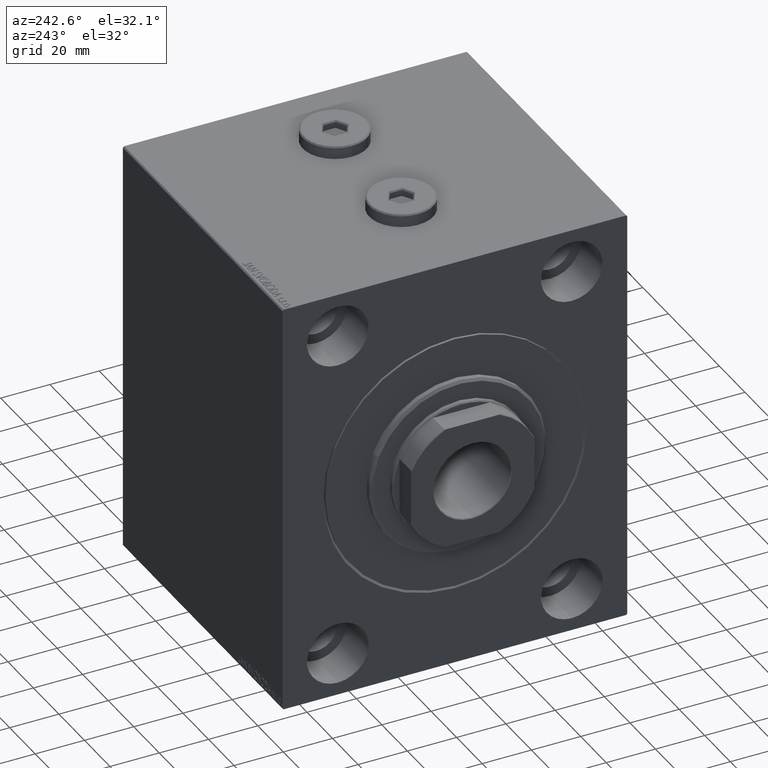
[diagram: clean part render]
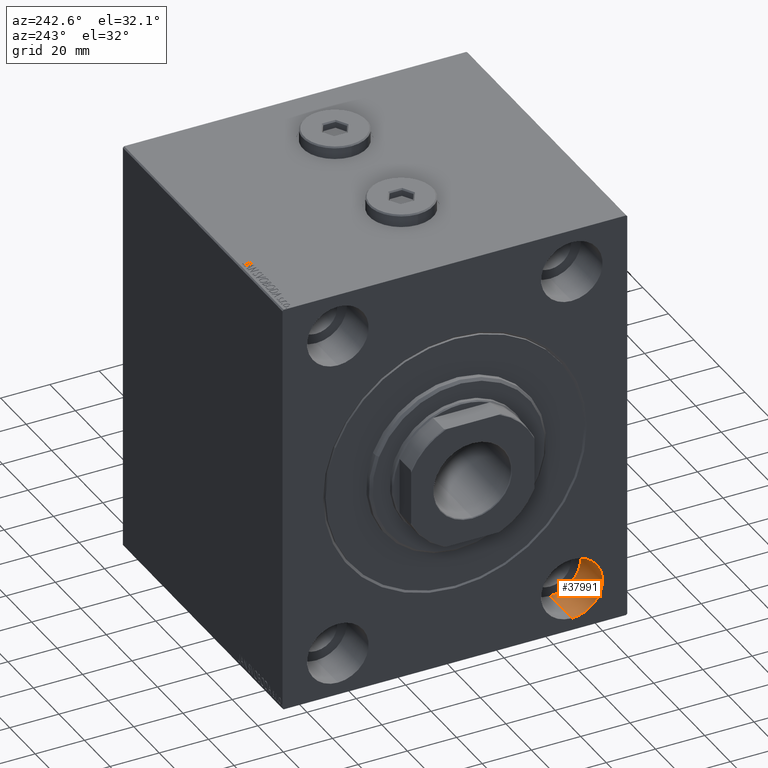
[diagram: same view with one face highlighted and labeled with its STEP entity id]
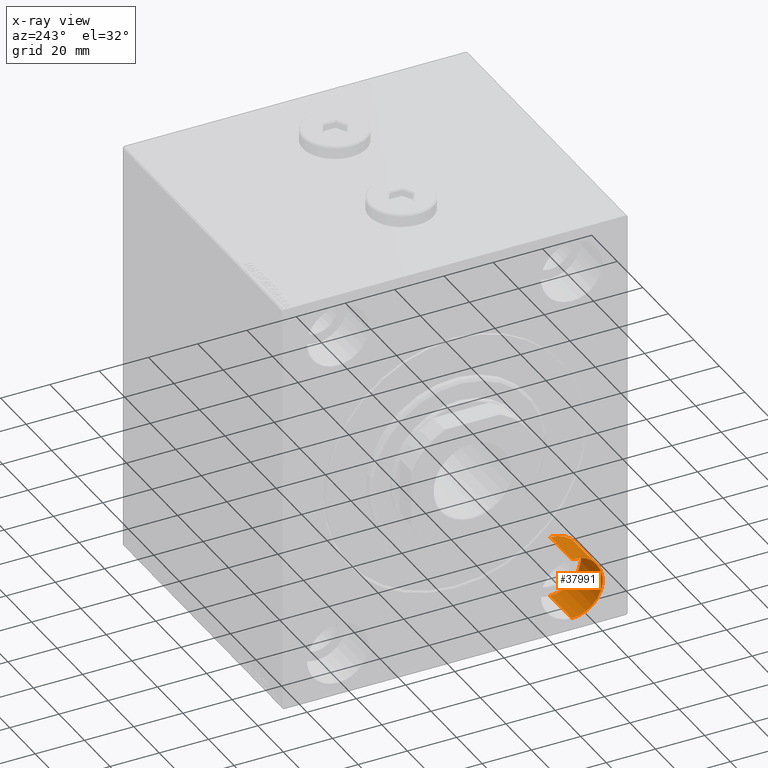
[diagram: x-ray of the same camera — body ghosted, the highlighted face saturated]
A machine part, auxiliary view. The second image highlights one B-rep face of the part: STEP entity #37991.
The next image is the same camera in x-ray: the body ghosted, the highlighted face saturated — about 0% of this face is hidden behind the body in this view.
In plain terms, the highlighted cylindrical surface (edge-blend (fillet) strip) has radius 12.5 mm, axis along (-1, -0, -0).
Its self-contained STEP definition (entity closure, byte-faithful):
#664 = ORIENTED_EDGE ( 'NONE', *, *, #44261, .T. ) ;
#1118 = CARTESIAN_POINT ( 'NONE',  ( 17.00000000000000000, -47.49999999999999289, -55.00000000000000711 ) ) ;
#1739 = AXIS2_PLACEMENT_3D ( 'NONE', #6646, #31254, #24637 ) ;
#3277 = CARTESIAN_POINT ( 'NONE',  ( 17.00000000000000000, -47.49999999999999289, -67.50000000000000000 ) ) ;
#3489 = DIRECTION ( 'NONE',  ( -1.000000000000000000, -0.000000000000000000, -0.000000000000000000 ) ) ;
#3706 = CARTESIAN_POINT ( 'NONE',  ( 17.00000000000000000, -47.49999999999999289, -80.00000000000000000 ) ) ;
#4481 = CARTESIAN_POINT ( 'NONE',  ( 0.000000000000000000, -47.49999999999999289, -55.00000000000000711 ) ) ;
#4578 = ORIENTED_EDGE ( 'NONE', *, *, #5199, .F. ) ;
#5199 = EDGE_CURVE ( 'NONE', #19780, #24951, #32349, .T. ) ;
#6646 = CARTESIAN_POINT ( 'NONE',  ( 17.00000000000000000, -47.49999999999999289, -67.50000000000000000 ) ) ;
#11708 = AXIS2_PLACEMENT_3D ( 'NONE', #3277, #13760, #41540 ) ;
#12799 = CIRCLE ( 'NONE', #39682, 12.49999999999999645 ) ;
#13739 = VERTEX_POINT ( 'NONE', #17299 ) ;
#13760 = DIRECTION ( 'NONE',  ( -1.000000000000000000, 0.000000000000000000, 0.000000000000000000 ) ) ;
#16120 = CARTESIAN_POINT ( 'NONE',  ( 17.00000000000000000, -47.49999999999999289, -80.00000000000000000 ) ) ;
#17299 = CARTESIAN_POINT ( 'NONE',  ( 0.000000000000000000, -47.49999999999999289, -80.00000000000000000 ) ) ;
#17352 = CARTESIAN_POINT ( 'NONE',  ( 0.000000000000000000, -47.49999999999999289, -67.50000000000000000 ) ) ;
#17599 = VERTEX_POINT ( 'NONE', #16120 ) ;
#18672 = VECTOR ( 'NONE', #3489, 1000.000000000000000 ) ;
#19780 = VERTEX_POINT ( 'NONE', #32646 ) ;
#21425 = DIRECTION ( 'NONE',  ( -1.000000000000000000, 0.000000000000000000, 0.000000000000000000 ) ) ;
#22136 = EDGE_CURVE ( 'NONE', #17599, #19780, #31386, .T. ) ;
#24455 = DIRECTION ( 'NONE',  ( -1.000000000000000000, -0.000000000000000000, -0.000000000000000000 ) ) ;
#24637 = DIRECTION ( 'NONE',  ( 0.000000000000000000, 0.000000000000000000, 1.000000000000000000 ) ) ;
#24951 = VERTEX_POINT ( 'NONE', #4481 ) ;
#28756 = LINE ( 'NONE', #3706, #36720 ) ;
#31254 = DIRECTION ( 'NONE',  ( -1.000000000000000000, -0.000000000000000000, -0.000000000000000000 ) ) ;
#31386 = CIRCLE ( 'NONE', #11708, 12.49999999999999645 ) ;
#32349 = LINE ( 'NONE', #1118, #18672 ) ;
#32646 = CARTESIAN_POINT ( 'NONE',  ( 17.00000000000000000, -47.49999999999999289, -55.00000000000000711 ) ) ;
#36720 = VECTOR ( 'NONE', #24455, 1000.000000000000000 ) ;
#36938 = ORIENTED_EDGE ( 'NONE', *, *, #40447, .T. ) ;
#37854 = FACE_OUTER_BOUND ( 'NONE', #38937, .T. ) ;
#37991 = ADVANCED_FACE ( 'NONE', ( #37854 ), #41039, .F. ) ;
#38721 = DIRECTION ( 'NONE',  ( 0.000000000000000000, 0.000000000000000000, 1.000000000000000000 ) ) ;
#38937 = EDGE_LOOP ( 'NONE', ( #40681, #36938, #664, #4578 ) ) ;
#39682 = AXIS2_PLACEMENT_3D ( 'NONE', #17352, #21425, #38721 ) ;
#40447 = EDGE_CURVE ( 'NONE', #17599, #13739, #28756, .T. ) ;
#40681 = ORIENTED_EDGE ( 'NONE', *, *, #22136, .F. ) ;
#41039 = CYLINDRICAL_SURFACE ( 'NONE', #1739, 12.49999999999999645 ) ;
#41540 = DIRECTION ( 'NONE',  ( 0.000000000000000000, 0.000000000000000000, 1.000000000000000000 ) ) ;
#44261 = EDGE_CURVE ( 'NONE', #13739, #24951, #12799, .T. ) ;